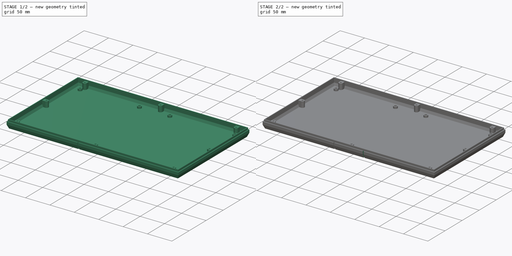
[diagram: build sequence overview — one tinted view per stage of 2, left to right]
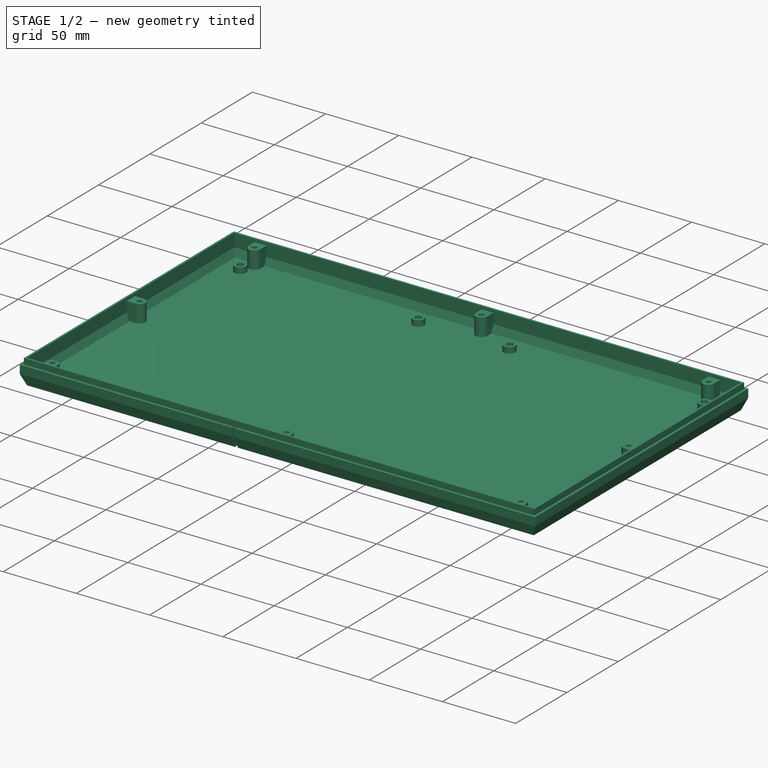
[diagram: stage 1 of 2 — iso view after this stage's code; geometry added in this stage tinted green]
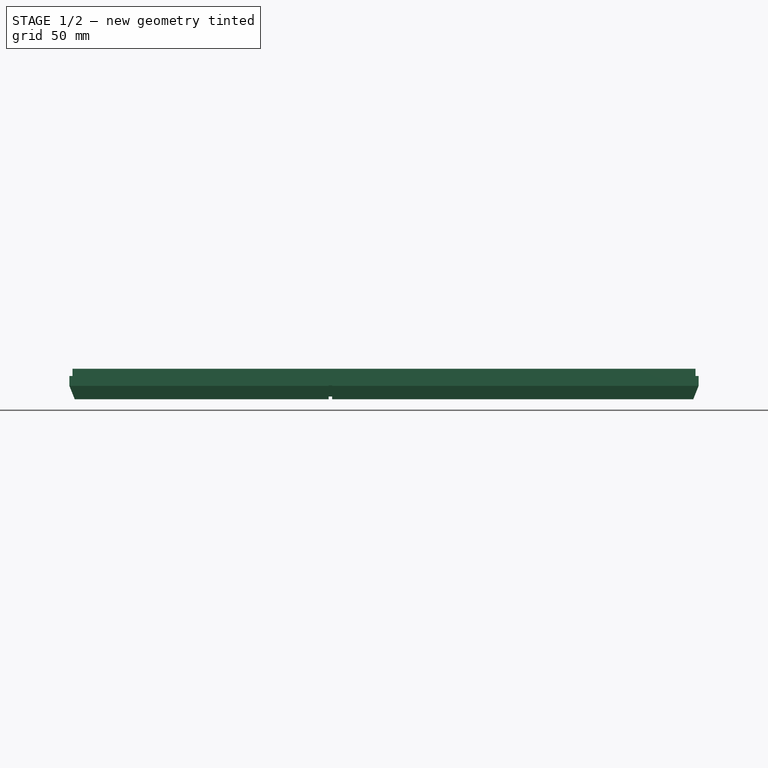
[diagram: stage 1 of 2 — front view after this stage's code; geometry added in this stage tinted green]
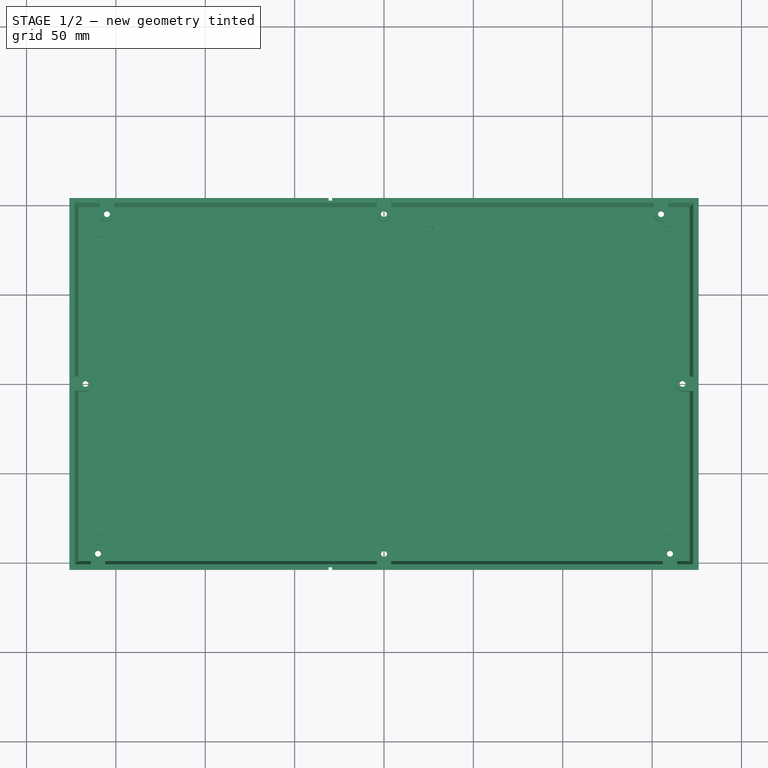
[diagram: stage 1 of 2 — top view after this stage's code; geometry added in this stage tinted green]
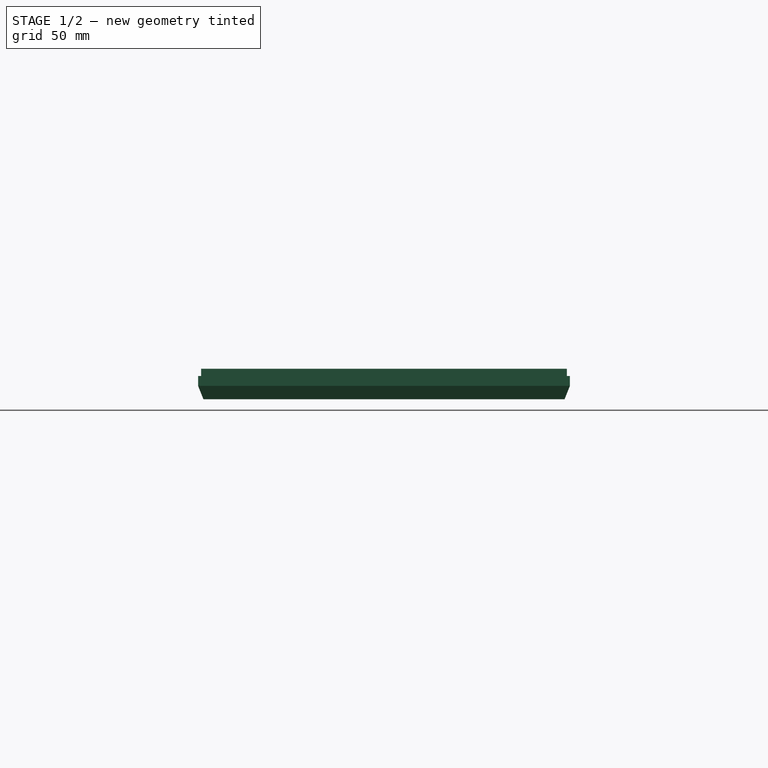
[diagram: stage 1 of 2 — right view after this stage's code; geometry added in this stage tinted green]
FCSTD DOCUMENT  (FreeCAD 0.21R33771 (Git))
Label: CaseBottomWithGrooves
License: All rights reserved
LicenseURL: https://en.wikipedia.org/wiki/All_rights_reserved
objects: Sketcher::SketchObject×2, Part::Feature×1, PartDesign::Plane×1, PartDesign::FeatureBase×1, PartDesign::SubtractivePipe×1, PartDesign::LinearPattern×1, PartDesign::Body×1
note: 9 computed .brp shape members not serialized (recipe doc carries the construction recipe); baked Part::Feature solids carry a one-line shape summary decoded from their .brp

FEATURE [Part::Feature] Part__Feature  label="PCBMountHoles001"
  shape: bbox 352 x 208 x 17 mm, 134 faces (baked)
FEATURE [PartDesign::Plane] DatumPlane
  AttachmentOffset = pos=(0,0,-30) rot=(0,0,1;0rad)
  Length = 228.396
  MapMode = 5
  Placement = pos=(-30,6.7e-15,-6.7e-15) rot=(0.57735,0.57735,0.57735;2.0944rad)
  ResizeMode = 0
  Support = -> [YZ_Plane]
  Width = 70.3961
FEATURE [PartDesign::FeatureBase] BaseFeature
  BaseFeature = -> Part__Feature
FEATURE [Sketcher::SketchObject] Sketch  label="GroovePath"
  ExternalGeometry = -> [BaseFeature]
  FullyConstrained = true
  MapMode = 5
  Placement = pos=(0,0,0) rot=(0.57735,0.57735,0.57735;2.0944rad)
  Support = -> [YZ_Plane]
  sketch-geometry (5):
    g0: LineSegment StartX=-104 StartY=6 StartZ=0 EndX=-104 EndY=0.422253 EndZ=0
    g1: LineSegment StartX=-104 StartY=0.422253 StartZ=0 EndX=-101.031 EndY=-7 EndZ=0
    g2: LineSegment StartX=-101.031 StartY=-7 StartZ=0 EndX=101.031 EndY=-7 EndZ=0
    g3: LineSegment StartX=101.031 StartY=-7 StartZ=0 EndX=104 EndY=0.422253 EndZ=0
    g4: LineSegment StartX=104 StartY=0.422253 StartZ=0 EndX=104 EndY=6 EndZ=0
  constraints (10):
    c: Coincident(g0,g-4)
    c: Coincident(g0,g1)
    c: Coincident(g1,g-5)
    c: Coincident(g1,g2)
    c: Coincident(g2,g-6)
    c: Coincident(g2,g3)
    c: Coincident(g3,g-7)
    c: Coincident(g3,g4)
    c: Coincident(g4,g-7)
    c: Coincident(g0,g-3)
FEATURE [Sketcher::SketchObject] Sketch001
  AttachmentOffset = pos=(-30,0,0) rot=(0,0,1;0rad)
  ExternalGeometry = -> [BaseFeature]
  FullyConstrained = false
  MapMode = 5
  Placement = pos=(-30,0,6) rot=(0,0,1;0rad)
  Support = -> [BaseFeature]
  sketch-geometry (5):
    g0: LineSegment StartX=-1 StartY=-102.5 StartZ=0 EndX=-1 EndY=-105 EndZ=0
    g1: LineSegment StartX=-1 StartY=-105 StartZ=0 EndX=1 EndY=-105 EndZ=0
    g2: LineSegment StartX=1 StartY=-105 StartZ=0 EndX=1 EndY=-102.5 EndZ=0
    g3: LineSegment StartX=1 StartY=-102.5 StartZ=0 EndX=-1 EndY=-102.5 EndZ=0
    g4: GeomPoint X=0 Y=-104 Z=0
  constraints (12):
    c: Coincident(g0,g1)
    c: Coincident(g1,g2)
    c: Coincident(g2,g3)
    c: Coincident(g3,g0)
    c: Horizontal(g1)
    c: Horizontal(g3)
    c: Vertical(g0)
    c: Vertical(g2)
    c: PointOnObject(g4,g-3)
    c: Block(g1)
    c: DistanceY(g0,g0) = 2.5
    c: DistanceX(g1,g1) = 2
FEATURE [PartDesign::SubtractivePipe] SubtractivePipe
  AuxilleryCurvelinear = true
  AuxillerySpineTangent = false
  BaseFeature = -> BaseFeature
  Binormal = (0,0,0)
  Mode = 0
  Profile = -> Sketch001
  Refine = true
  Spine = -> Sketch
  SpineTangent = false
  Transformation = 0
  Transition = 1
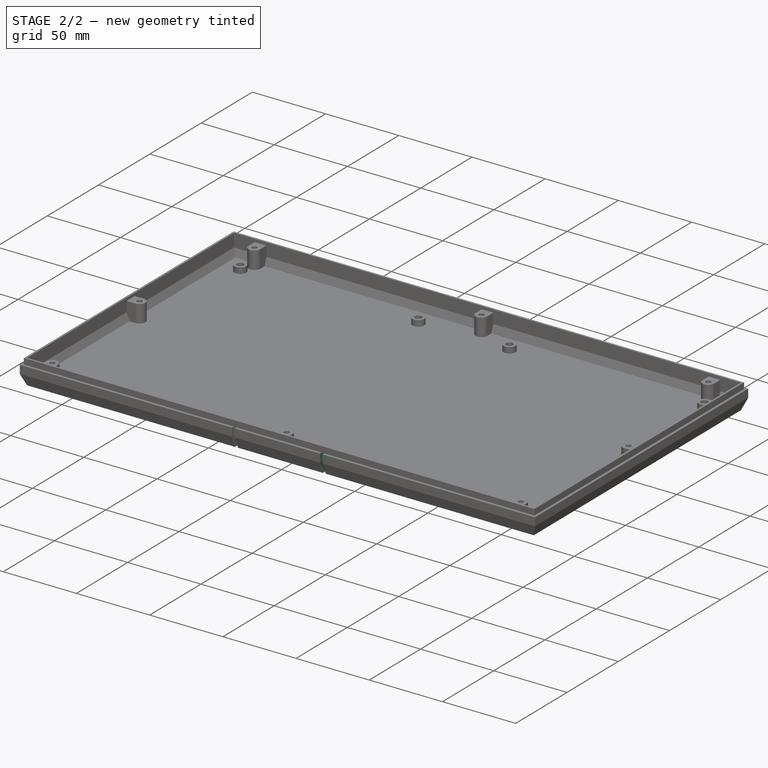
[diagram: stage 2 of 2 — iso view after this stage's code; geometry added in this stage tinted green]
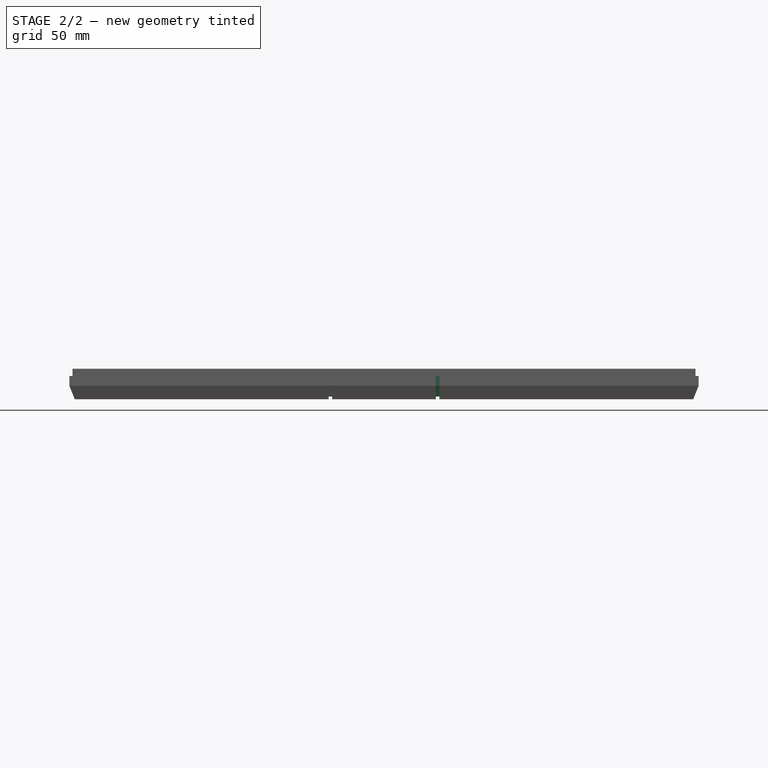
[diagram: stage 2 of 2 — front view after this stage's code; geometry added in this stage tinted green]
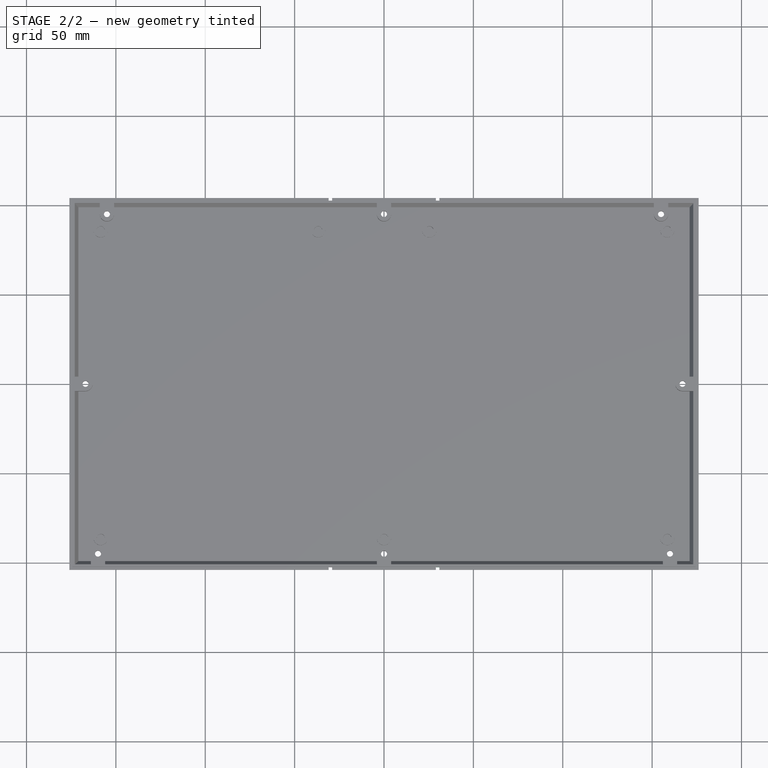
[diagram: stage 2 of 2 — top view after this stage's code; geometry added in this stage tinted green]
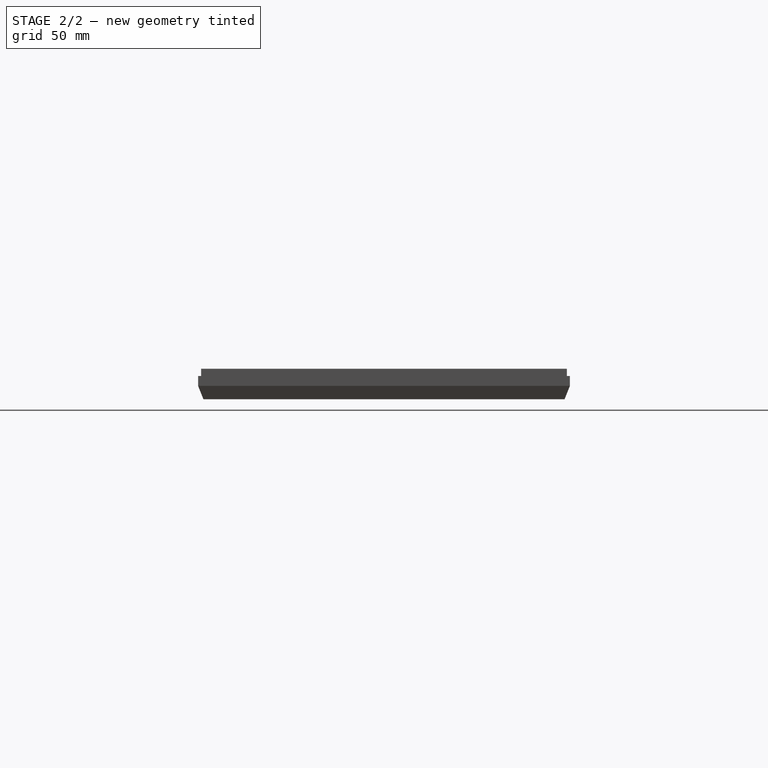
[diagram: stage 2 of 2 — right view after this stage's code; geometry added in this stage tinted green]
FEATURE [PartDesign::LinearPattern] LinearPattern
  BaseFeature = -> SubtractivePipe
  Direction = -> Sketch001 [H_Axis]
  Length = 60
  Occurrences = 2
  Originals = -> [SubtractivePipe]
  Refine = true
FEATURE [PartDesign::Body] Body
  BaseFeature = -> Part__Feature
  Group = -> [BaseFeature,DatumPlane,Sketch,Sketch001,SubtractivePipe,LinearPattern]
  Origin = -> Origin
  Tip = -> LinearPattern
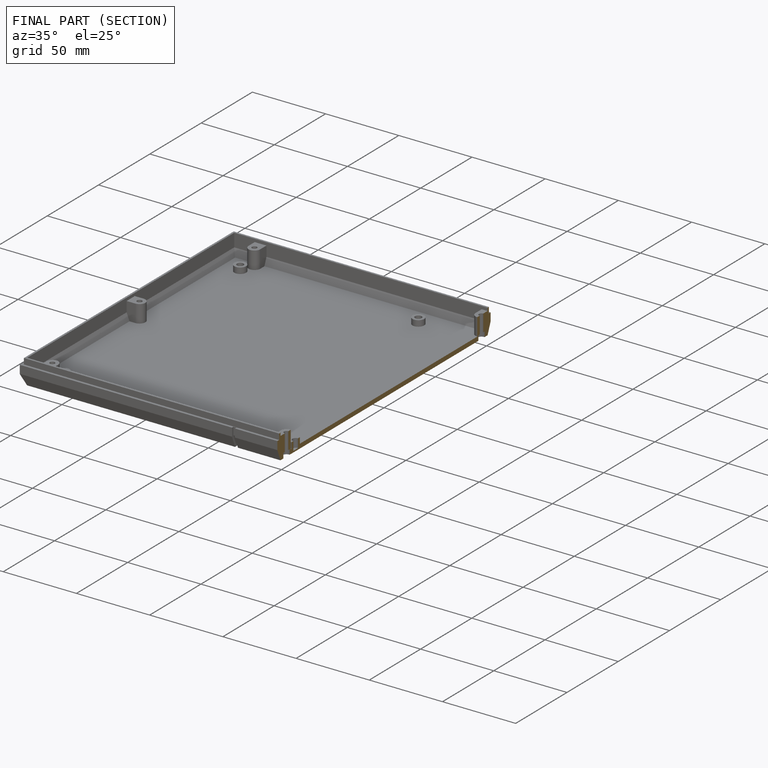
[diagram: finished part — half-section view (interior)]
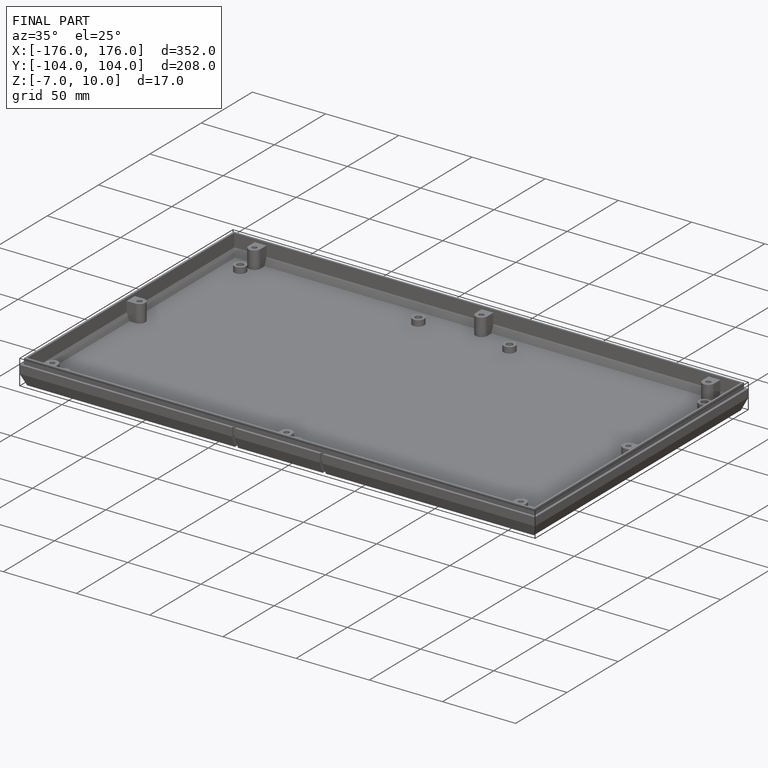
[diagram: finished part — iso view with bounding-box wireframe]
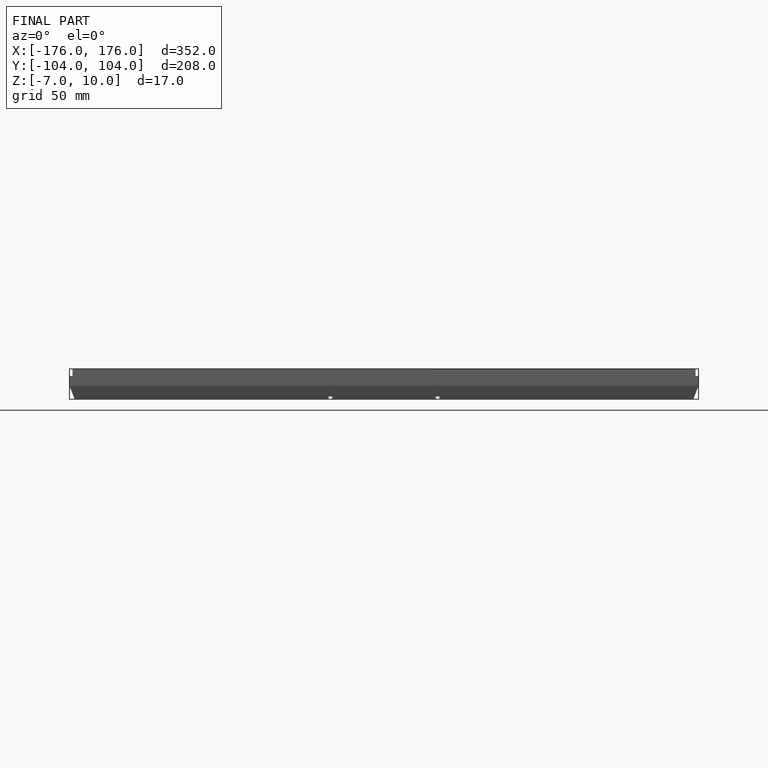
[diagram: finished part — front view with bounding-box wireframe]
